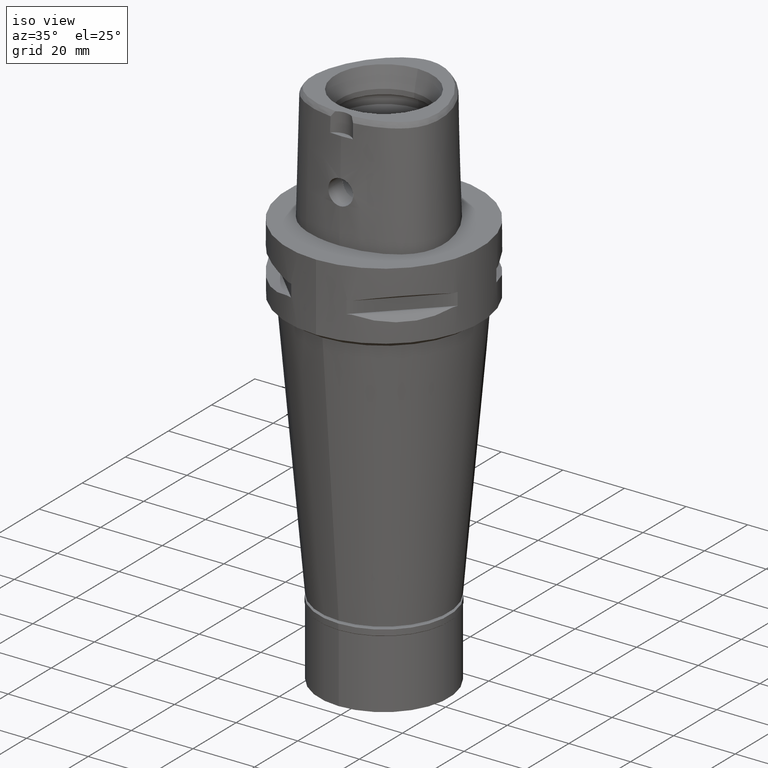
[diagram: clean part render]
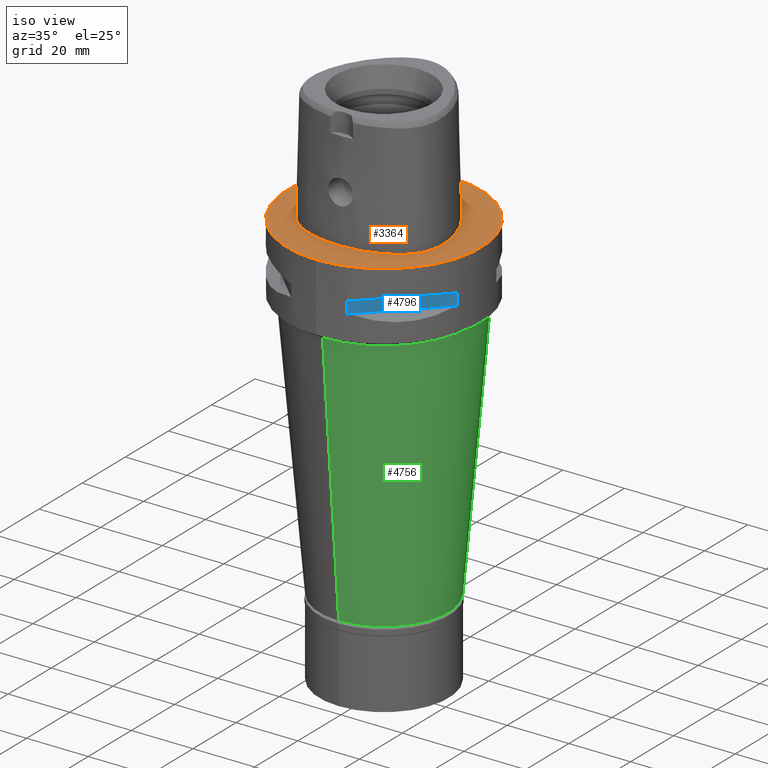
[diagram: same view with three faces highlighted in distinct colors, each labeled with its STEP entity id]
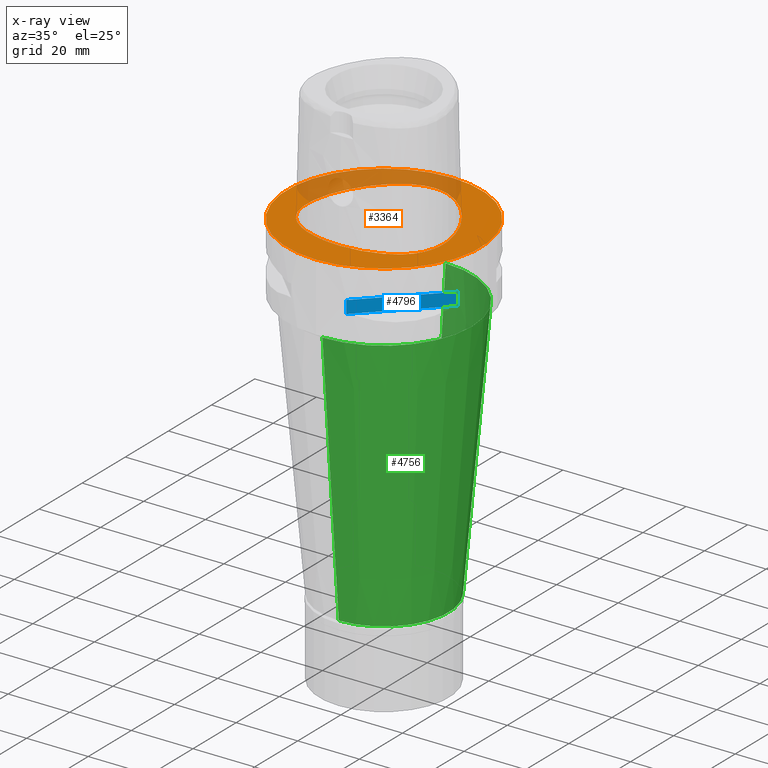
[diagram: x-ray of the same camera — body ghosted, the three highlighted faces saturated]
A machine part, iso view with three faces highlighted in distinct colors.
The next image is the same camera in x-ray (body ghosted, the three faces saturated) — at least one of them is partly hidden behind the body in this view.
Their STEP definitions:

[orange] entity #3364 — the highlighted planar face has unit normal (0, 0, -1).
#107 = CARTESIAN_POINT ( 'NONE',  ( 0.0000000000000000000, -31.50000000000000000, 0.0000000000000000000 ) ) ;
#136 = PLANE ( 'NONE',  #894 ) ;
#144 = CARTESIAN_POINT ( 'NONE',  ( 6.341471028062761306, -20.29812504930935191, -1.992663573453486506E-06 ) ) ;
#188 = CARTESIAN_POINT ( 'NONE',  ( -21.55524825451094273, -8.996025388966710779, 2.320472702605890641E-07 ) ) ;
#350 = B_SPLINE_CURVE_WITH_KNOTS ( 'NONE', 3,
 ( #1328, #965, #4542, #4834, #1350, #2885, #3704, #648, #573, #4904, #1040, #2134, #188, #1755, #2494, #4491, #598, #544, #941, #2542, #4876, #995, #2587 ),
 .UNSPECIFIED., .F., .F.,
 ( 4, 1, 1, 1, 1, 1, 1, 1, 1, 1, 1, 1, 1, 1, 1, 1, 1, 1, 1, 1, 4 ),
 ( 0.0000000000000000000, 0.04166666666736999758, 0.08333333333399001175, 0.1250000000005999923, 0.1666666666673000119, 0.2500000000004999889, 0.3333333333337000215, 0.4166666666670000296, 0.5000000000002999823, 0.5416666666668999985, 0.5833333333335000148, 0.6250000000001000311, 0.6458333333333999837, 0.6666666666667999674, 0.6875000000001000311, 0.7083333333333000637, 0.7500000000000000000, 0.7916666666667000474, 0.8333333333332000326, 0.9166666666664999852, 1.000000000000000000 ),
 .UNSPECIFIED. ) ;
#420 = VERTEX_POINT ( 'NONE', #1049 ) ;
#422 = ORIENTED_EDGE ( 'NONE', *, *, #4122, .F. ) ;
#532 = CARTESIAN_POINT ( 'NONE',  ( 22.05732879274146185, -6.847636725866246721, -1.992663573453486506E-06 ) ) ;
#544 = CARTESIAN_POINT ( 'NONE',  ( -16.95889172233483322, -15.67838866729274017, 2.320472702605890641E-07 ) ) ;
#573 = CARTESIAN_POINT ( 'NONE',  ( -20.74942740330822488, 4.657187498021925443, 2.320472702605890641E-07 ) ) ;
#576 = CARTESIAN_POINT ( 'NONE',  ( 0.0000000000000000000, 0.0000000000000000000, 0.0000000000000000000 ) ) ;
#584 = CARTESIAN_POINT ( 'NONE',  ( 16.95889175686413708, -15.67838871120266475, -1.992663573453486506E-06 ) ) ;
#598 = CARTESIAN_POINT ( 'NONE',  ( -18.56841064719354151, -14.16937987880661964, 2.320472702605890641E-07 ) ) ;
#608 = EDGE_CURVE ( 'NONE', #420, #4897, #4476, .T. ) ;
#648 = CARTESIAN_POINT ( 'NONE',  ( -18.06826688021687488, 10.43171874708874114, 2.320472702605890641E-07 ) ) ;
#654 = ORIENTED_EDGE ( 'NONE', *, *, #1542, .F. ) ;
#767 = DIRECTION ( 'NONE',  ( 0.0000000000000000000, 0.0000000000000000000, -1.000000000000000000 ) ) ;
#894 = AXIS2_PLACEMENT_3D ( 'NONE', #576, #1783, #1354 ) ;
#929 = CARTESIAN_POINT ( 'NONE',  ( 20.34961802879125869, -11.74885744682386779, -1.992663573453486506E-06 ) ) ;
#941 = CARTESIAN_POINT ( 'NONE',  ( -14.67337964131683492, -17.21410155744621662, 2.320472702605890641E-07 ) ) ;
#965 = CARTESIAN_POINT ( 'NONE',  ( -0.8548392418926302749, 23.47499999420164940, 2.320472702605890641E-07 ) ) ;
#995 = CARTESIAN_POINT ( 'NONE',  ( -2.113823672719711944, -20.67499999420197909, 2.320472702605890641E-07 ) ) ;
#1040 = CARTESIAN_POINT ( 'NONE',  ( -22.24453907272616249, -4.100468750033838816, 2.320472702605890641E-07 ) ) ;
#1049 = CARTESIAN_POINT ( 'NONE',  ( 0.0000000000000000000, 31.50000000000000000, 0.0000000000000000000 ) ) ;
#1298 = AXIS2_PLACEMENT_3D ( 'NONE', #1512, #767, #3952 ) ;
#1328 = CARTESIAN_POINT ( 'NONE',  ( 4.563147088830000295E-11, 23.47499999999000053, 5.517808432386999607E-14 ) ) ;
#1350 = CARTESIAN_POINT ( 'NONE',  ( -7.571159431412567642, 21.31457030747969483, 2.320472702605890641E-07 ) ) ;
#1354 = DIRECTION ( 'NONE',  ( 0.0000000000000000000, -1.000000000000000000, 0.0000000000000000000 ) ) ;
#1469 = B_SPLINE_CURVE_WITH_KNOTS ( 'NONE', 3,
 ( #2165, #4094, #144, #3348, #1793, #584, #4939, #2987, #929, #2482, #4044, #532, #2093, #3661, #1718, #2894, #4451, #3062, #4216, #4190, #2708, #5040, #4273 ),
 .UNSPECIFIED., .F., .F.,
 ( 4, 1, 1, 1, 1, 1, 1, 1, 1, 1, 1, 1, 1, 1, 1, 1, 1, 1, 1, 1, 4 ),
 ( 0.0000000000000000000, 0.08333333333339000559, 0.1666666666667000196, 0.2083333333333000081, 0.2500000000000000000, 0.2916666666666999919, 0.3125000000000000000, 0.3333333333333000081, 0.3541666666666000163, 0.3749999999998999689, 0.4166666666666000163, 0.4583333333332000326, 0.4999999999998999689, 0.5833333333331000015, 0.6666666666664999852, 0.7499999999998000488, 0.8333333333329999704, 0.8749999999997000177, 0.9166666666664000651, 0.9583333333329999704, 1.000000000000000000 ),
 .UNSPECIFIED. ) ;
#1512 = CARTESIAN_POINT ( 'NONE',  ( 0.0000000000000000000, 0.0000000000000000000, 0.0000000000000000000 ) ) ;
#1542 = EDGE_CURVE ( 'NONE', #4897, #420, #3334, .T. ) ;
#1718 = CARTESIAN_POINT ( 'NONE',  ( 20.74942745593155635, 4.657187516984527598, -1.992663573453486506E-06 ) ) ;
#1755 = CARTESIAN_POINT ( 'NONE',  ( -20.93173251680899227, -10.60431640389433205, 2.320472702605890641E-07 ) ) ;
#1783 = DIRECTION ( 'NONE',  ( 0.0000000000000000000, 0.0000000000000000000, -1.000000000000000000 ) ) ;
#1793 = CARTESIAN_POINT ( 'NONE',  ( 14.67337966892383783, -17.21410160591437233, -1.992663573453486506E-06 ) ) ;
#1899 = CARTESIAN_POINT ( 'NONE',  ( 4.563147088830000295E-11, 23.47499999999000053, 5.517808432386999607E-14 ) ) ;
#2034 = EDGE_LOOP ( 'NONE', ( #2732, #654 ) ) ;
#2093 = CARTESIAN_POINT ( 'NONE',  ( 22.24453912851986104, -4.100468749707069982, -1.992663573453486506E-06 ) ) ;
#2134 = CARTESIAN_POINT ( 'NONE',  ( -22.05732873745247602, -6.847636717920724259, 2.320472702605890641E-07 ) ) ;
#2160 = FACE_BOUND ( 'NONE', #4090, .T. ) ;
#2165 = CARTESIAN_POINT ( 'NONE',  ( -7.554100656235000957E-12, -20.67499999999999716, 5.806466418789999109E-14 ) ) ;
#2482 = CARTESIAN_POINT ( 'NONE',  ( 20.93173256770583635, -10.60431642653746387, -1.992663573453486506E-06 ) ) ;
#2494 = CARTESIAN_POINT ( 'NONE',  ( -20.34961798053398141, -11.74885741896065028, 2.320472702605890641E-07 ) ) ;
#2542 = CARTESIAN_POINT ( 'NONE',  ( -11.23259756527943409, -18.89324218202647998, 2.320472702605890641E-07 ) ) ;
#2587 = CARTESIAN_POINT ( 'NONE',  ( -7.554100656235000957E-12, -20.67499999999999716, 5.806466418789999109E-14 ) ) ;
#2708 = CARTESIAN_POINT ( 'NONE',  ( 2.564517737195544544, 23.29328129905019296, -1.992663573453486506E-06 ) ) ;
#2732 = ORIENTED_EDGE ( 'NONE', *, *, #608, .F. ) ;
#2885 = CARTESIAN_POINT ( 'NONE',  ( -10.74572890684456006, 19.17433593302928330, 2.320472702605890641E-07 ) ) ;
#2894 = CARTESIAN_POINT ( 'NONE',  ( 18.06826692862655293, 10.43171877503918843, -1.992663573453486506E-06 ) ) ;
#2987 = CARTESIAN_POINT ( 'NONE',  ( 19.64947369900581364, -12.82525393559096294, -1.992663573453486506E-06 ) ) ;
#3062 = CARTESIAN_POINT ( 'NONE',  ( 10.74572894279757840, 19.17433597585617733, -1.992663573453486506E-06 ) ) ;
#3199 = EDGE_CURVE ( 'NONE', #3905, #4985, #1469, .T. ) ;
#3246 = DIRECTION ( 'NONE',  ( 0.0000000000000000000, -1.000000000000000000, 0.0000000000000000000 ) ) ;
#3334 = CIRCLE ( 'NONE', #4328, 31.50000000000000000 ) ;
#3348 = CARTESIAN_POINT ( 'NONE',  ( 11.23259758438846312, -18.89324223456831930, -1.992663573453486506E-06 ) ) ;
#3364 = ADVANCED_FACE ( 'NONE', ( #4908, #2160 ), #136, .F. ) ;
#3661 = CARTESIAN_POINT ( 'NONE',  ( 21.97832652718694035, -0.2810937412846541417, -1.992663573453486506E-06 ) ) ;
#3704 = CARTESIAN_POINT ( 'NONE',  ( -14.40795638512652488, 15.64093749622768037, 2.320472702605890641E-07 ) ) ;
#3905 = VERTEX_POINT ( 'NONE', #4524 ) ;
#3952 = DIRECTION ( 'NONE',  ( 0.0000000000000000000, 1.000000000000000000, 0.0000000000000000000 ) ) ;
#4044 = CARTESIAN_POINT ( 'NONE',  ( 21.55524830801335767, -8.996025404867355135, -1.992663573453486506E-06 ) ) ;
#4090 = EDGE_LOOP ( 'NONE', ( #422, #4286 ) ) ;
#4094 = CARTESIAN_POINT ( 'NONE',  ( 2.113823676028923515, -20.67500004980728079, -1.992663573453486082E-06 ) ) ;
#4122 = EDGE_CURVE ( 'NONE', #4985, #3905, #350, .T. ) ;
#4190 = CARTESIAN_POINT ( 'NONE',  ( 5.098437035877529055, 22.52602543707122962, -1.992663573453486506E-06 ) ) ;
#4216 = CARTESIAN_POINT ( 'NONE',  ( 7.571159459588902685, 21.31457035562419122, -1.992663573453486506E-06 ) ) ;
#4273 = CARTESIAN_POINT ( 'NONE',  ( 4.563147088830000295E-11, 23.47499999999000053, 5.517808432386999607E-14 ) ) ;
#4286 = ORIENTED_EDGE ( 'NONE', *, *, #3199, .F. ) ;
#4328 = AXIS2_PLACEMENT_3D ( 'NONE', #4377, #4397, #3246 ) ;
#4377 = CARTESIAN_POINT ( 'NONE',  ( 0.0000000000000000000, 0.0000000000000000000, 0.0000000000000000000 ) ) ;
#4397 = DIRECTION ( 'NONE',  ( 0.0000000000000000000, 0.0000000000000000000, -1.000000000000000000 ) ) ;
#4451 = CARTESIAN_POINT ( 'NONE',  ( 14.40795642786110697, 15.64093753232589279, -1.992663573453486506E-06 ) ) ;
#4476 = CIRCLE ( 'NONE', #1298, 31.50000000000000000 ) ;
#4491 = CARTESIAN_POINT ( 'NONE',  ( -19.64947365393844692, -12.82525390282949296, 2.320472702605890641E-07 ) ) ;
#4524 = CARTESIAN_POINT ( 'NONE',  ( -7.554100656235000957E-12, -20.67499999999999716, 5.806466418789999109E-14 ) ) ;
#4542 = CARTESIAN_POINT ( 'NONE',  ( -2.564517725764392964, 23.29328124428865721, 2.320472702605890641E-07 ) ) ;
#4834 = CARTESIAN_POINT ( 'NONE',  ( -5.098437015117591287, 22.52602538521632169, 2.320472702605890641E-07 ) ) ;
#4876 = CARTESIAN_POINT ( 'NONE',  ( -6.341471018181030317, -20.29812499426476435, 2.320472702605890641E-07 ) ) ;
#4897 = VERTEX_POINT ( 'NONE', #107 ) ;
#4904 = CARTESIAN_POINT ( 'NONE',  ( -21.97832647212497292, -0.2810937510149783547, 2.320472702605890641E-07 ) ) ;
#4908 = FACE_OUTER_BOUND ( 'NONE', #2034, .T. ) ;
#4939 = CARTESIAN_POINT ( 'NONE',  ( 18.56841068770436465, -14.16937991718528345, -1.992663573453486506E-06 ) ) ;
#4985 = VERTEX_POINT ( 'NONE', #1899 ) ;
#5040 = CARTESIAN_POINT ( 'NONE',  ( 0.8548392458382638726, 23.47500004981582933, -1.992663573453486506E-06 ) ) ;

[blue] entity #4796 — the highlighted planar face has unit normal (-0.7071, 0.7071, 0).
#100 = CARTESIAN_POINT ( 'NONE',  ( 30.19251670572000279, -8.981198972019999616, -14.05000000000000071 ) ) ;
#259 = CARTESIAN_POINT ( 'NONE',  ( 8.981198972019999616, -30.19251670572000279, -9.950000000000001066 ) ) ;
#293 = VERTEX_POINT ( 'NONE', #4045 ) ;
#627 = DIRECTION ( 'NONE',  ( 0.0000000000000000000, 0.0000000000000000000, -1.000000000000000000 ) ) ;
#694 = DIRECTION ( 'NONE',  ( -0.7071067811865475727, 0.7071067811865475727, 0.0000000000000000000 ) ) ;
#748 = CARTESIAN_POINT ( 'NONE',  ( 33.72899346260000186, -5.444722215136000187, -9.950000000000001066 ) ) ;
#976 = VERTEX_POINT ( 'NONE', #259 ) ;
#1295 = VECTOR ( 'NONE', #627, 1000.000000000000000 ) ;
#1409 = EDGE_LOOP ( 'NONE', ( #4203, #2447, #3166, #1907 ) ) ;
#1432 = CARTESIAN_POINT ( 'NONE',  ( 30.19251670572000279, -8.981198972017999438, -9.950000000000001066 ) ) ;
#1495 = DIRECTION ( 'NONE',  ( 0.0000000000000000000, 0.0000000000000000000, 1.000000000000000000 ) ) ;
#1562 = DIRECTION ( 'NONE',  ( 0.0000000000000000000, 0.0000000000000000000, 1.000000000000000000 ) ) ;
#1795 = VECTOR ( 'NONE', #3680, 1000.000000000000114 ) ;
#1903 = EDGE_CURVE ( 'NONE', #976, #293, #3787, .T. ) ;
#1907 = ORIENTED_EDGE ( 'NONE', *, *, #3960, .T. ) ;
#1916 = LINE ( 'NONE', #3499, #2276 ) ;
#1928 = PLANE ( 'NONE',  #2365 ) ;
#2047 = VERTEX_POINT ( 'NONE', #1432 ) ;
#2106 = CARTESIAN_POINT ( 'NONE',  ( 8.981198972017999438, -30.19251670572000279, -14.05000000000000071 ) ) ;
#2276 = VECTOR ( 'NONE', #1562, 1000.000000000000000 ) ;
#2365 = AXIS2_PLACEMENT_3D ( 'NONE', #748, #694, #1495 ) ;
#2447 = ORIENTED_EDGE ( 'NONE', *, *, #1903, .T. ) ;
#2650 = CARTESIAN_POINT ( 'NONE',  ( 8.981198972017999438, -30.19251670572000279, -9.950000000000001066 ) ) ;
#3067 = DIRECTION ( 'NONE',  ( 0.7071067811865474617, 0.7071067811865474617, 0.0000000000000000000 ) ) ;
#3166 = ORIENTED_EDGE ( 'NONE', *, *, #4210, .T. ) ;
#3439 = FACE_OUTER_BOUND ( 'NONE', #1409, .T. ) ;
#3499 = CARTESIAN_POINT ( 'NONE',  ( 30.19251670572000279, -8.981198972017999438, -14.05000000000000071 ) ) ;
#3602 = VECTOR ( 'NONE', #3067, 1000.000000000000114 ) ;
#3680 = DIRECTION ( 'NONE',  ( 0.7071067811865474617, 0.7071067811865474617, 0.0000000000000000000 ) ) ;
#3697 = VERTEX_POINT ( 'NONE', #100 ) ;
#3787 = LINE ( 'NONE', #4137, #1295 ) ;
#3960 = EDGE_CURVE ( 'NONE', #3697, #2047, #1916, .T. ) ;
#4045 = CARTESIAN_POINT ( 'NONE',  ( 8.981198972017999438, -30.19251670572000279, -14.05000000000000071 ) ) ;
#4054 = LINE ( 'NONE', #2106, #1795 ) ;
#4137 = CARTESIAN_POINT ( 'NONE',  ( 8.981198972017999438, -30.19251670572000279, -9.950000000000001066 ) ) ;
#4170 = LINE ( 'NONE', #2650, #3602 ) ;
#4203 = ORIENTED_EDGE ( 'NONE', *, *, #5000, .F. ) ;
#4210 = EDGE_CURVE ( 'NONE', #293, #3697, #4054, .T. ) ;
#4796 = ADVANCED_FACE ( 'NONE', ( #3439 ), #1928, .F. ) ;
#5000 = EDGE_CURVE ( 'NONE', #976, #2047, #4170, .T. ) ;

[green] entity #4756 — the highlighted conical surface has half-angle 5 deg.
#27 = LINE ( 'NONE', #1949, #670 ) ;
#68 = CIRCLE ( 'NONE', #4894, 21.00000000000000000 ) ;
#84 = EDGE_CURVE ( 'NONE', #2811, #3820, #27, .T. ) ;
#211 = CARTESIAN_POINT ( 'NONE',  ( 0.0000000000000000000, 28.51527619688000215, -24.00000000000000000 ) ) ;
#255 = FACE_OUTER_BOUND ( 'NONE', #785, .T. ) ;
#466 = ORIENTED_EDGE ( 'NONE', *, *, #3121, .F. ) ;
#670 = VECTOR ( 'NONE', #5023, 1000.000000000000000 ) ;
#671 = DIRECTION ( 'NONE',  ( 0.0000000000000000000, 1.000000000000000000, 0.0000000000000000000 ) ) ;
#785 = EDGE_LOOP ( 'NONE', ( #1021, #4872, #1180, #466 ) ) ;
#942 = VERTEX_POINT ( 'NONE', #1404 ) ;
#1021 = ORIENTED_EDGE ( 'NONE', *, *, #1467, .F. ) ;
#1066 = CONICAL_SURFACE ( 'NONE', #3842, 24.75763809843999752, 0.08726646259969973729 ) ;
#1140 = CIRCLE ( 'NONE', #3260, 28.51527619688000215 ) ;
#1180 = ORIENTED_EDGE ( 'NONE', *, *, #3303, .T. ) ;
#1231 = DIRECTION ( 'NONE',  ( 0.0000000000000000000, -1.000000000000000000, 0.0000000000000000000 ) ) ;
#1404 = CARTESIAN_POINT ( 'NONE',  ( 0.0000000000000000000, 21.00000000000000000, -109.8999999999999915 ) ) ;
#1467 = EDGE_CURVE ( 'NONE', #2811, #3395, #1140, .T. ) ;
#1596 = DIRECTION ( 'NONE',  ( 0.0000000000000000000, 0.0000000000000000000, 1.000000000000000000 ) ) ;
#1818 = LINE ( 'NONE', #2570, #2027 ) ;
#1949 = CARTESIAN_POINT ( 'NONE',  ( 0.0000000000000000000, -28.51527619688000215, -24.00000000000000000 ) ) ;
#2027 = VECTOR ( 'NONE', #4138, 1000.000000000000000 ) ;
#2170 = CARTESIAN_POINT ( 'NONE',  ( 0.0000000000000000000, -28.51527619688000215, -24.00000000000000000 ) ) ;
#2303 = CARTESIAN_POINT ( 'NONE',  ( 0.0000000000000000000, 0.0000000000000000000, -24.00000000000000000 ) ) ;
#2343 = CARTESIAN_POINT ( 'NONE',  ( 0.0000000000000000000, 0.0000000000000000000, -109.8999999999999915 ) ) ;
#2570 = CARTESIAN_POINT ( 'NONE',  ( 0.0000000000000000000, 28.51527619688000215, -24.00000000000000000 ) ) ;
#2581 = DIRECTION ( 'NONE',  ( 0.0000000000000000000, 0.0000000000000000000, 1.000000000000000000 ) ) ;
#2811 = VERTEX_POINT ( 'NONE', #2170 ) ;
#3121 = EDGE_CURVE ( 'NONE', #3395, #942, #1818, .T. ) ;
#3260 = AXIS2_PLACEMENT_3D ( 'NONE', #2303, #1596, #3872 ) ;
#3303 = EDGE_CURVE ( 'NONE', #3820, #942, #68, .T. ) ;
#3373 = CARTESIAN_POINT ( 'NONE',  ( 0.0000000000000000000, -21.00000000000000000, -109.8999999999999915 ) ) ;
#3395 = VERTEX_POINT ( 'NONE', #211 ) ;
#3820 = VERTEX_POINT ( 'NONE', #3373 ) ;
#3821 = CARTESIAN_POINT ( 'NONE',  ( 0.0000000000000000000, 0.0000000000000000000, -66.94999999999998863 ) ) ;
#3842 = AXIS2_PLACEMENT_3D ( 'NONE', #3821, #2581, #671 ) ;
#3872 = DIRECTION ( 'NONE',  ( 0.0000000000000000000, -1.000000000000000000, 0.0000000000000000000 ) ) ;
#4138 = DIRECTION ( 'NONE',  ( 0.0000000000000000000, -0.08715574274767391716, -0.9961946980917442129 ) ) ;
#4738 = DIRECTION ( 'NONE',  ( 0.0000000000000000000, 0.0000000000000000000, 1.000000000000000000 ) ) ;
#4756 = ADVANCED_FACE ( 'NONE', ( #255 ), #1066, .T. ) ;
#4872 = ORIENTED_EDGE ( 'NONE', *, *, #84, .T. ) ;
#4894 = AXIS2_PLACEMENT_3D ( 'NONE', #2343, #4738, #1231 ) ;
#5023 = DIRECTION ( 'NONE',  ( 0.0000000000000000000, 0.08715574274767391716, -0.9961946980917442129 ) ) ;